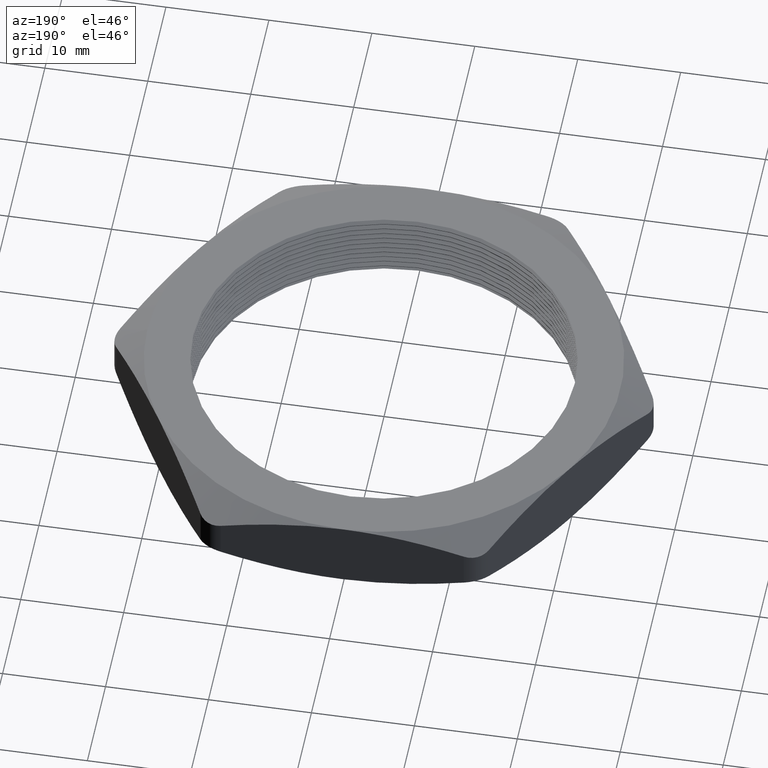
[diagram: clean part render]
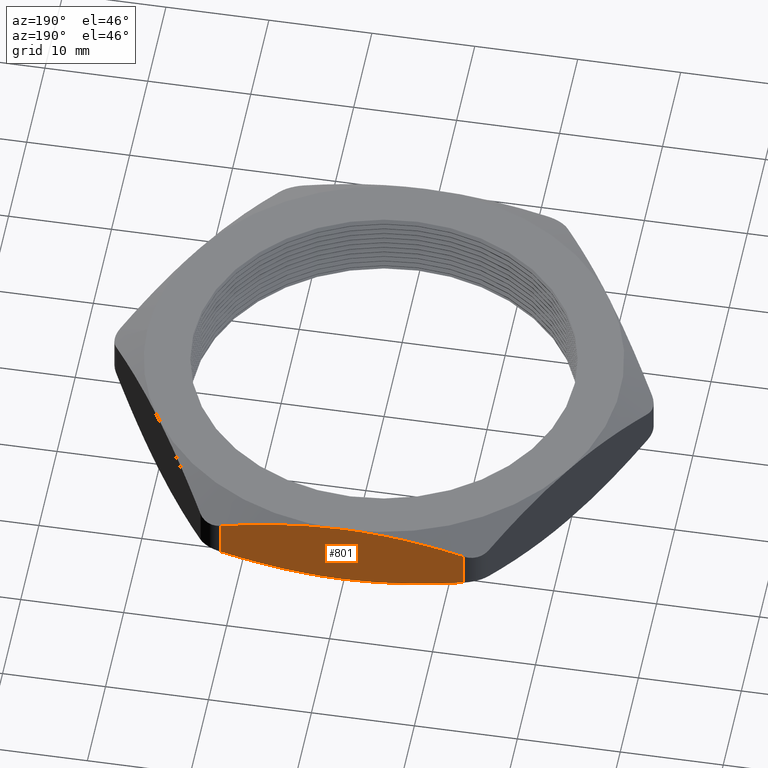
[diagram: same view with one face highlighted and labeled with its STEP entity id]
A machine part, auxiliary view. The second image highlights one B-rep face of the part: STEP entity #801.
In plain terms, the highlighted planar face has unit normal (-0, -1, 0).
Its self-contained STEP definition (entity closure, byte-faithful):
#237 = CARTESIAN_POINT ( 'NONE',  ( 1.182924880895400800E-016, 0.9050000000000001400, 0.0000000000000000000 ) ) ;
#710 = ORIENTED_EDGE ( 'NONE', *, *, #711, .T. ) ;
#711 = EDGE_CURVE ( 'NONE', #724, #725, #1012, .T. ) ;
#721 = EDGE_LOOP ( 'NONE', ( #722, #710, #973, #976, #930, #933 ) ) ;
#722 = ORIENTED_EDGE ( 'NONE', *, *, #723, .F. ) ;
#723 = EDGE_CURVE ( 'NONE', #724, #2581, #1005, .T. ) ;
#724 = VERTEX_POINT ( 'NONE', #1179 ) ;
#725 = VERTEX_POINT ( 'NONE', #1127 ) ;
#801 = ADVANCED_FACE ( 'NONE', ( #1252 ), #1352, .F. ) ;
#930 = ORIENTED_EDGE ( 'NONE', *, *, #931, .T. ) ;
#931 = EDGE_CURVE ( 'NONE', #978, #932, #1538, .T. ) ;
#932 = VERTEX_POINT ( 'NONE', #1524 ) ;
#933 = ORIENTED_EDGE ( 'NONE', *, *, #934, .F. ) ;
#934 = EDGE_CURVE ( 'NONE', #2581, #932, #1522, .T. ) ;
#973 = ORIENTED_EDGE ( 'NONE', *, *, #974, .F. ) ;
#974 = EDGE_CURVE ( 'NONE', #975, #725, #1703, .T. ) ;
#975 = VERTEX_POINT ( 'NONE', #1702 ) ;
#976 = ORIENTED_EDGE ( 'NONE', *, *, #977, .F. ) ;
#977 = EDGE_CURVE ( 'NONE', #978, #975, #1658, .T. ) ;
#978 = VERTEX_POINT ( 'NONE', #1657 ) ;
#1005 = B_SPLINE_CURVE_WITH_KNOTS ( 'NONE', 3,
 ( #1198, #1215, #1178, #1204, #1217, #1105, #1156, #1218 ),
 .UNSPECIFIED., .F., .F.,
 ( 4, 2, 2, 4 ),
 ( 0.02593618632744265600, 0.02891628200238716500, 0.03189637767733167300, 0.03785656902722068400 ),
 .UNSPECIFIED. ) ;
#1010 = DIRECTION ( 'NONE',  ( 0.0000000000000000000, 0.0000000000000000000, 1.000000000000000000 ) ) ;
#1011 = CARTESIAN_POINT ( 'NONE',  ( -0.4647669666976488300, 0.9050000000000001400, 0.2700000000000000200 ) ) ;
#1012 = LINE ( 'NONE', #1011, #1069 ) ;
#1069 = VECTOR ( 'NONE', #1010, 39.37007874015748100 ) ;
#1105 = CARTESIAN_POINT ( 'NONE',  ( -0.1563390355021614400, 0.9050000000000004700, 0.005968169600270328800 ) ) ;
#1127 = CARTESIAN_POINT ( 'NONE',  ( -0.4647669666975990900, 0.9050000000000001400, 0.2051255290633449700 ) ) ;
#1156 = CARTESIAN_POINT ( 'NONE',  ( -0.07842741064723450500, 0.9050000000000003600, 4.748720145236708000E-017 ) ) ;
#1178 = CARTESIAN_POINT ( 'NONE',  ( -0.3881909402094328400, 0.9050000000000001400, 0.04566056715143133900 ) ) ;
#1179 = CARTESIAN_POINT ( 'NONE',  ( -0.4647669666975993700, 0.9050000000000001400, 0.06487447093665511800 ) ) ;
#1198 = CARTESIAN_POINT ( 'NONE',  ( -0.4647669666975993700, 0.9050000000000001400, 0.06487447093665511800 ) ) ;
#1204 = CARTESIAN_POINT ( 'NONE',  ( -0.3111489786863251800, 0.9050000000000000300, 0.02962950257258438500 ) ) ;
#1215 = CARTESIAN_POINT ( 'NONE',  ( -0.4266887770958172600, 0.9050000000000004700, 0.05483123305512822800 ) ) ;
#1217 = CARTESIAN_POINT ( 'NONE',  ( -0.2725300247025080300, 0.9050000000000001400, 0.02274762075487726100 ) ) ;
#1218 = CARTESIAN_POINT ( 'NONE',  ( 1.182924880895400800E-016, 0.9050000000000001400, 0.0000000000000000000 ) ) ;
#1252 = FACE_OUTER_BOUND ( 'NONE', #721, .T. ) ;
#1295 = CARTESIAN_POINT ( 'NONE',  ( 0.5225019936166117600, 0.9050000000000000300, 0.2700000000000000200 ) ) ;
#1296 = AXIS2_PLACEMENT_3D ( 'NONE', #1295, #1393, #1392 ) ;
#1352 = PLANE ( 'NONE',  #1296 ) ;
#1392 = DIRECTION ( 'NONE',  ( 1.000000000000000000, -1.307099315906520000E-016, 0.0000000000000000000 ) ) ;
#1393 = DIRECTION ( 'NONE',  ( -1.307099315906520000E-016, -1.000000000000000000, 0.0000000000000000000 ) ) ;
#1512 = CARTESIAN_POINT ( 'NONE',  ( 0.4647669666976492200, 0.9050000000000000300, 0.06487447093666892700 ) ) ;
#1513 = CARTESIAN_POINT ( 'NONE',  ( 0.3893959658073395400, 0.9050000000000000300, 0.04499514108337157600 ) ) ;
#1514 = CARTESIAN_POINT ( 'NONE',  ( 0.3130892096661322400, 0.9049999999999999200, 0.02868035123031081500 ) ) ;
#1515 = CARTESIAN_POINT ( 'NONE',  ( 0.1966484677006309900, 0.9050000000000000300, 0.01175282682642995300 ) ) ;
#1516 = CARTESIAN_POINT ( 'NONE',  ( 0.1574463951325990000, 0.9050000000000001400, 0.007367026951243356300 ) ) ;
#1517 = CARTESIAN_POINT ( 'NONE',  ( 0.07853249257661516800, 0.9050000000000000300, 0.001476861530126618500 ) ) ;
#1518 = CARTESIAN_POINT ( 'NONE',  ( 0.03920242905074019400, 0.9050000000000000300, 3.631570391968239200E-017 ) ) ;
#1519 = CARTESIAN_POINT ( 'NONE',  ( 1.182924880895400800E-016, 0.9050000000000001400, 0.0000000000000000000 ) ) ;
#1522 = B_SPLINE_CURVE_WITH_KNOTS ( 'NONE', 3,
 ( #1519, #1518, #1517, #1516, #1515, #1514, #1513, #1512 ),
 .UNSPECIFIED., .F., .F.,
 ( 4, 2, 2, 4 ),
 ( 0.03785656902722068400, 0.04083580774738999200, 0.04381504646755929300, 0.04977352390789791000 ),
 .UNSPECIFIED. ) ;
#1524 = CARTESIAN_POINT ( 'NONE',  ( 0.4647669666976492200, 0.9050000000000000300, 0.06487447093666892700 ) ) ;
#1525 = DIRECTION ( 'NONE',  ( 0.0000000000000000000, 0.0000000000000000000, -1.000000000000000000 ) ) ;
#1526 = VECTOR ( 'NONE', #1525, 39.37007874015748100 ) ;
#1527 = CARTESIAN_POINT ( 'NONE',  ( 0.4647669666976491600, 0.9050000000000000300, 0.2700000000000000200 ) ) ;
#1538 = LINE ( 'NONE', #1527, #1526 ) ;
#1554 = CARTESIAN_POINT ( 'NONE',  ( 1.182924880895400800E-016, 0.9050000000000001400, 0.2700000000000000200 ) ) ;
#1555 = CARTESIAN_POINT ( 'NONE',  ( 0.03920242905074020800, 0.9050000000000001400, 0.2700000000000000700 ) ) ;
#1556 = CARTESIAN_POINT ( 'NONE',  ( 0.07853249257661479300, 0.9049999999999999200, 0.2685231384698733600 ) ) ;
#1557 = CARTESIAN_POINT ( 'NONE',  ( 0.1574463951325987800, 0.9050000000000000300, 0.2626329730487566600 ) ) ;
#1558 = CARTESIAN_POINT ( 'NONE',  ( 0.1966484677006311900, 0.9050000000000000300, 0.2582471731735701500 ) ) ;
#1559 = CARTESIAN_POINT ( 'NONE',  ( 0.3130892096661323000, 0.9049999999999998000, 0.2413196487696891700 ) ) ;
#1655 = CARTESIAN_POINT ( 'NONE',  ( 0.3893959658073397100, 0.9049999999999998000, 0.2250048589166283000 ) ) ;
#1656 = CARTESIAN_POINT ( 'NONE',  ( 0.4647669666976492200, 0.9050000000000000300, 0.2051255290633311200 ) ) ;
#1657 = CARTESIAN_POINT ( 'NONE',  ( 0.4647669666976492200, 0.9050000000000000300, 0.2051255290633311200 ) ) ;
#1658 = B_SPLINE_CURVE_WITH_KNOTS ( 'NONE', 3,
 ( #1656, #1655, #1559, #1558, #1557, #1556, #1555, #1554 ),
 .UNSPECIFIED., .F., .F.,
 ( 4, 2, 2, 4 ),
 ( 0.06272913144575291400, 0.06868996851711070600, 0.07167038705278960800, 0.07465080558846849700 ),
 .UNSPECIFIED. ) ;
#1660 = CARTESIAN_POINT ( 'NONE',  ( -0.4647669666975990900, 0.9050000000000001400, 0.2051255290633449700 ) ) ;
#1661 = CARTESIAN_POINT ( 'NONE',  ( -0.4266887770958168200, 0.9050000000000001400, 0.2151687669448720000 ) ) ;
#1662 = CARTESIAN_POINT ( 'NONE',  ( -0.3881909402094322300, 0.9050000000000004700, 0.2243394328485688000 ) ) ;
#1663 = CARTESIAN_POINT ( 'NONE',  ( -0.3111489786863248000, 0.9050000000000001400, 0.2403704974274157600 ) ) ;
#1664 = CARTESIAN_POINT ( 'NONE',  ( -0.2725300247025076400, 0.9050000000000001400, 0.2472523792451229200 ) ) ;
#1665 = CARTESIAN_POINT ( 'NONE',  ( -0.1563390355021611300, 0.9050000000000003600, 0.2640318303997298300 ) ) ;
#1666 = CARTESIAN_POINT ( 'NONE',  ( -0.07842741064723432500, 0.9050000000000004700, 0.2699999999999999600 ) ) ;
#1667 = CARTESIAN_POINT ( 'NONE',  ( 1.182924880895400800E-016, 0.9050000000000001400, 0.2700000000000000200 ) ) ;
#1702 = CARTESIAN_POINT ( 'NONE',  ( 1.182924880895400800E-016, 0.9050000000000001400, 0.2700000000000000200 ) ) ;
#1703 = B_SPLINE_CURVE_WITH_KNOTS ( 'NONE', 3,
 ( #1667, #1666, #1665, #1664, #1663, #1662, #1661, #1660 ),
 .UNSPECIFIED., .F., .F.,
 ( 4, 2, 2, 4 ),
 ( 0.07465080558846849700, 0.08061335724810612900, 0.08359463307792494600, 0.08657590890774376200 ),
 .UNSPECIFIED. ) ;
#2581 = VERTEX_POINT ( 'NONE', #237 ) ;